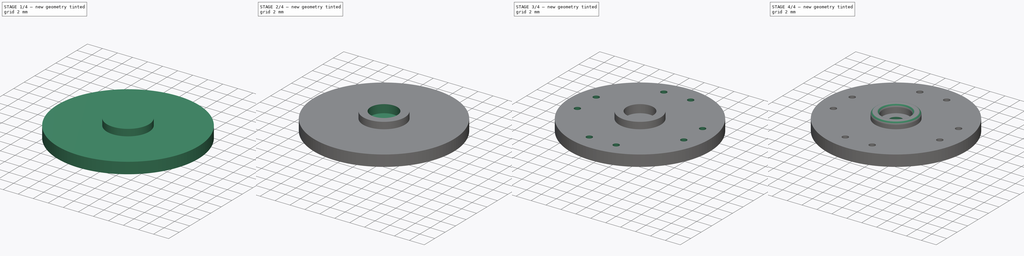
[diagram: build sequence overview — one tinted view per stage of 4, left to right]
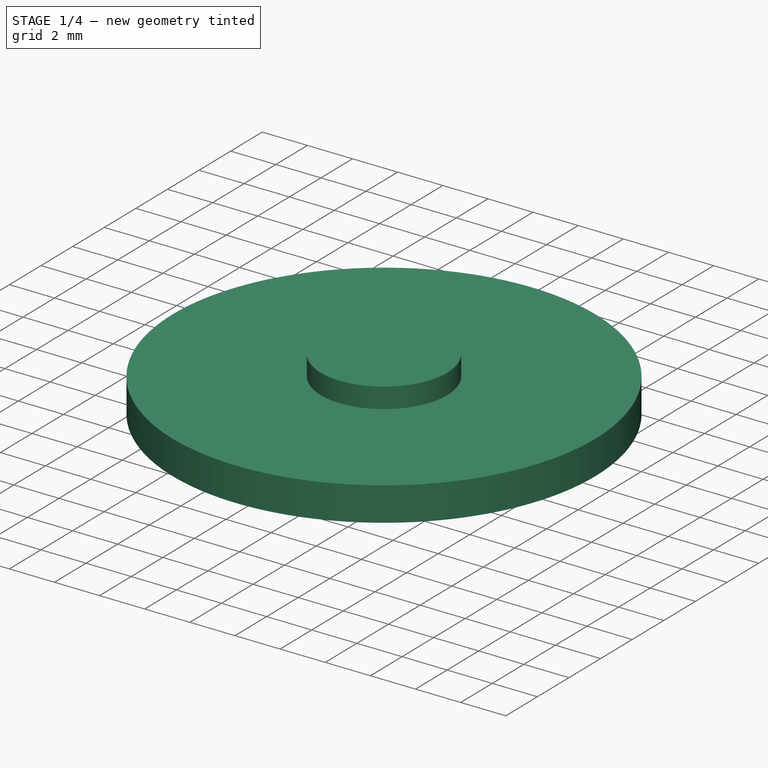
[diagram: stage 1 of 4 — iso view after this stage's code; geometry added in this stage tinted green]
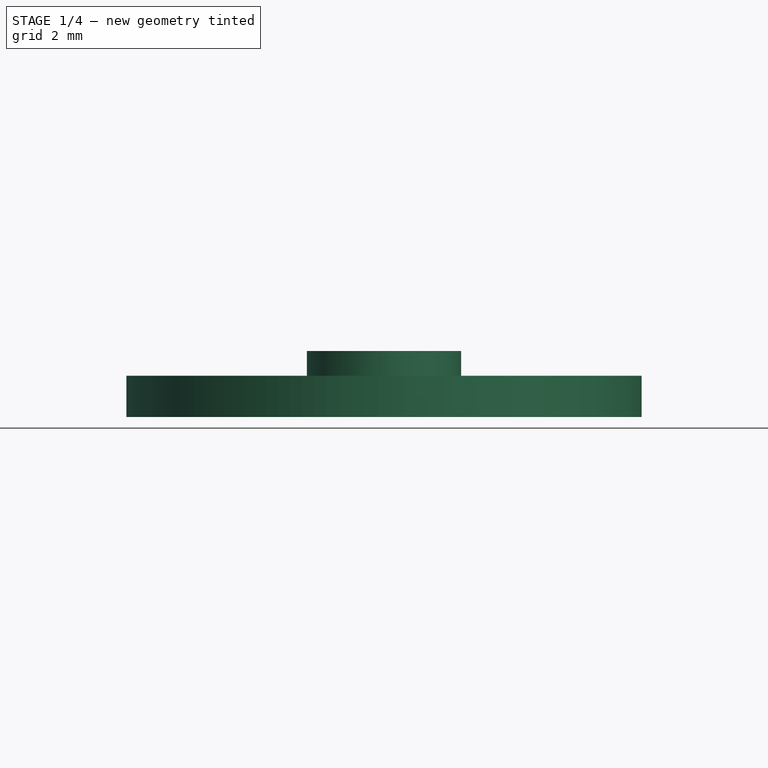
[diagram: stage 1 of 4 — front view after this stage's code; geometry added in this stage tinted green]
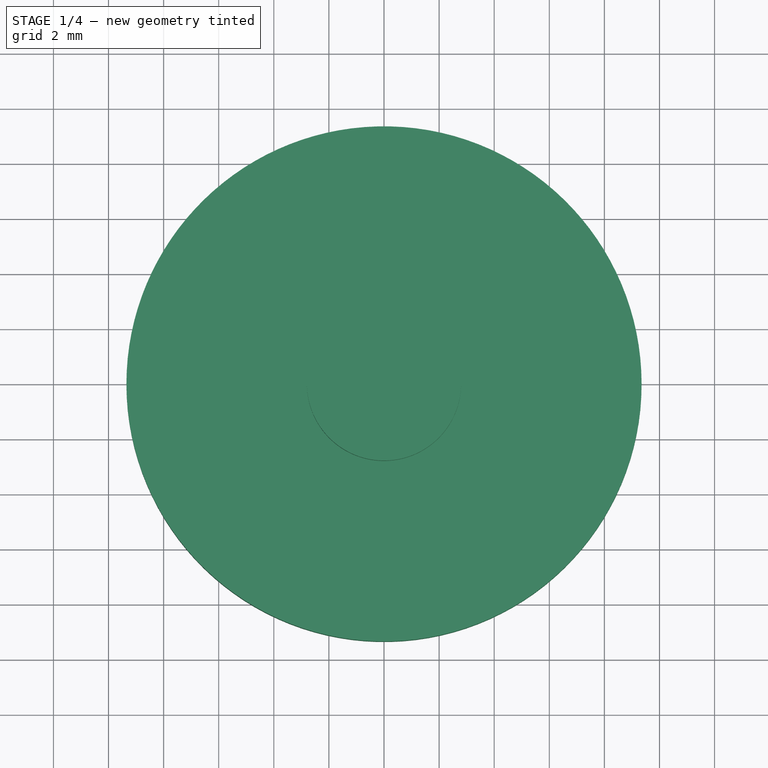
[diagram: stage 1 of 4 — top view after this stage's code; geometry added in this stage tinted green]
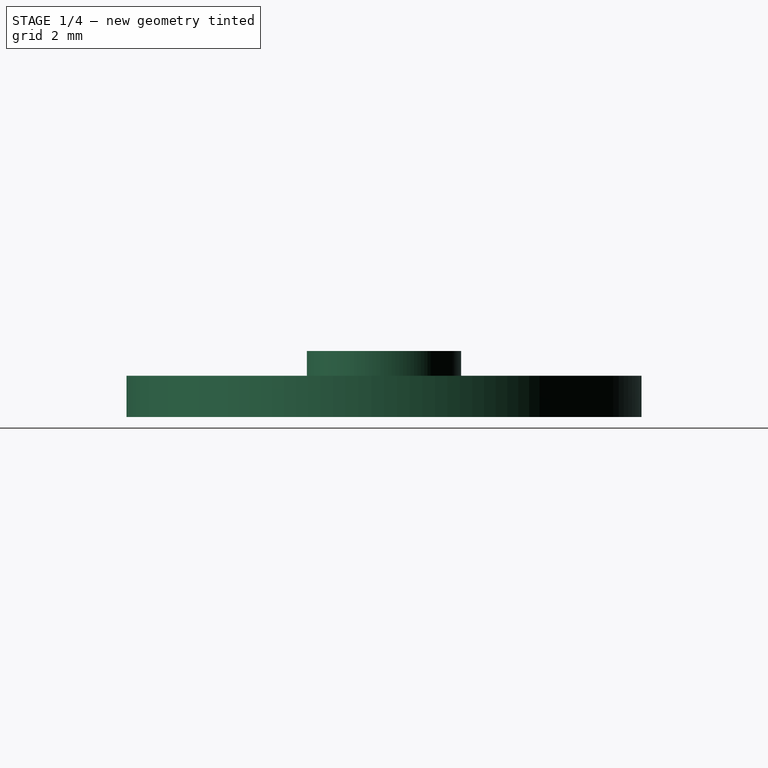
[diagram: stage 1 of 4 — right view after this stage's code; geometry added in this stage tinted green]
FCSTD DOCUMENT  (FreeCAD 0.14R3702 (Git))
Label: servo-rounded-horn
License: CC-BY 3.0
LicenseURL: http://creativecommons.org/licenses/by/3.0/
objects: Sketcher::SketchObject×7, PartDesign::Pocket×4, PartDesign::Pad×3, PartDesign::PolarPattern×1, Part::Fillet×1
note: 23 computed .brp shape members not serialized (recipe doc carries the construction recipe); baked Part::Feature solids carry a one-line shape summary decoded from their .brp

FEATURE [Sketcher::SketchObject] Sketch  label="main-body-sketch"
  sketch-geometry (1):
    g0: Circle CenterX=0 CenterY=0 CenterZ=0 NormalX=0 NormalY=0 NormalZ=1 Radius=9.35
  constraints (2):
    c: Coincident(g0,g-1)
    c: Radius(g0) = 9.35
FEATURE [PartDesign::Pad] Pad  label="main-body"
  Length = 1.5
  Length2 = 100
  Sketch = -> Sketch
  Type = 0
FEATURE [Sketcher::SketchObject] Sketch001  label="top-pad-1-sketch"
  Placement = pos=(0,0,1.5) rot=(0,0,1;0rad)
  Support = -> Pad [Face3]
  sketch-geometry (1):
    g0: Circle CenterX=0 CenterY=0 CenterZ=0 NormalX=0 NormalY=0 NormalZ=1 Radius=2.8
  constraints (2):
    c: Coincident(g0,g-1)
    c: Radius(g0) = 2.8
FEATURE [PartDesign::Pad] Pad001  label="top-pad-1"
  Length = 0.9
  Length2 = 100
  Sketch = -> Sketch001
  Type = 0
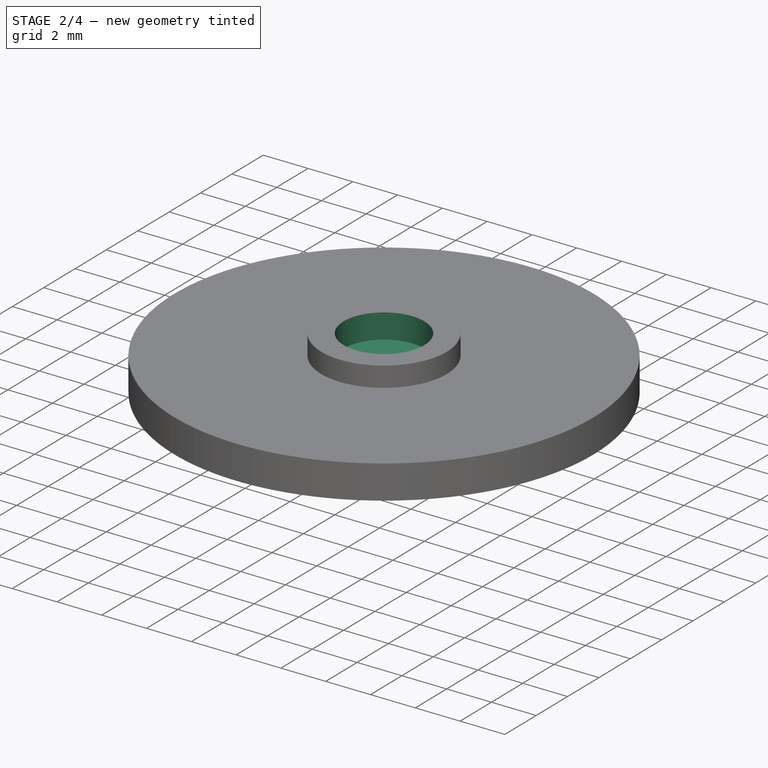
[diagram: stage 2 of 4 — iso view after this stage's code; geometry added in this stage tinted green]
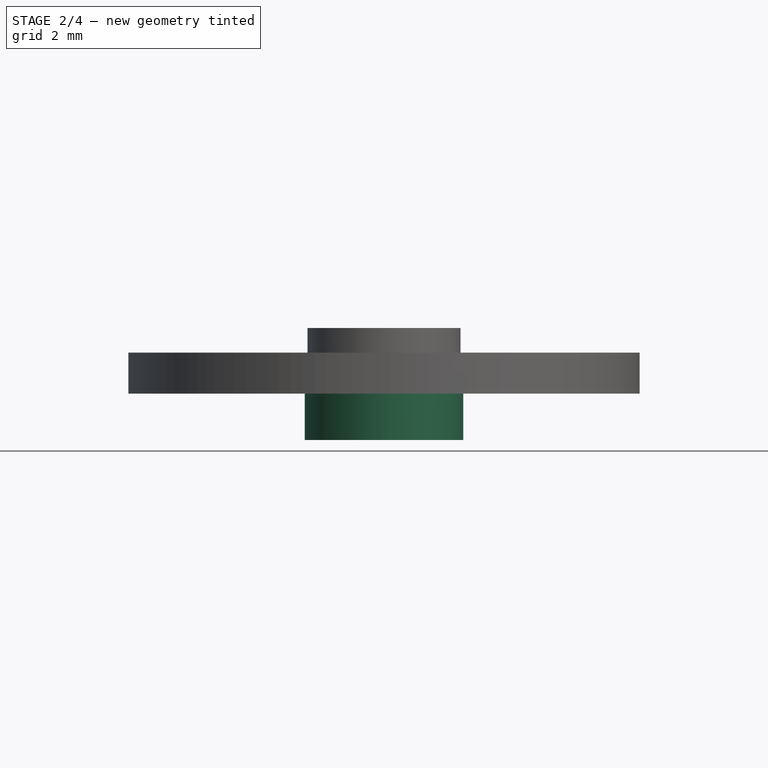
[diagram: stage 2 of 4 — front view after this stage's code; geometry added in this stage tinted green]
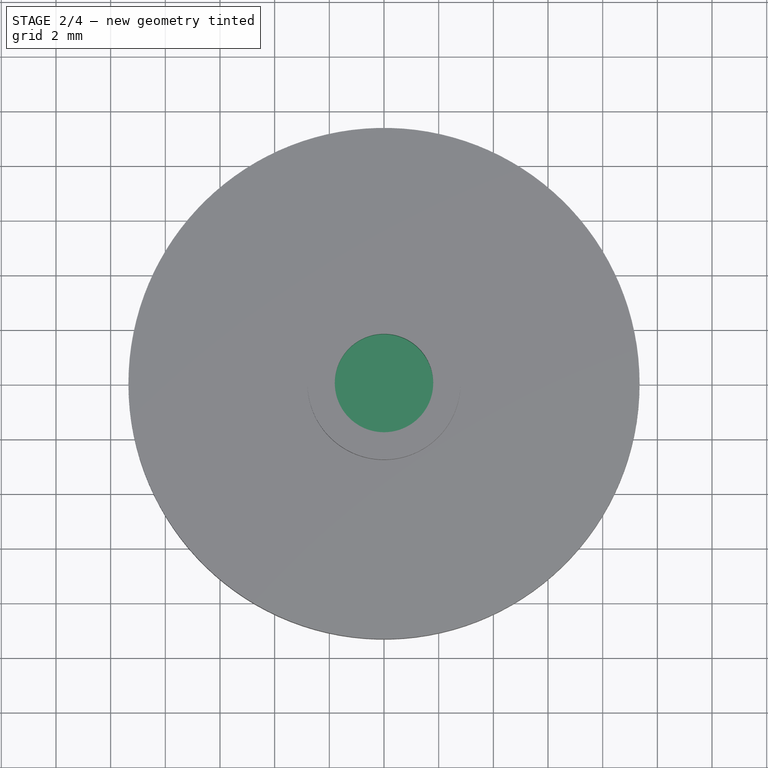
[diagram: stage 2 of 4 — top view after this stage's code; geometry added in this stage tinted green]
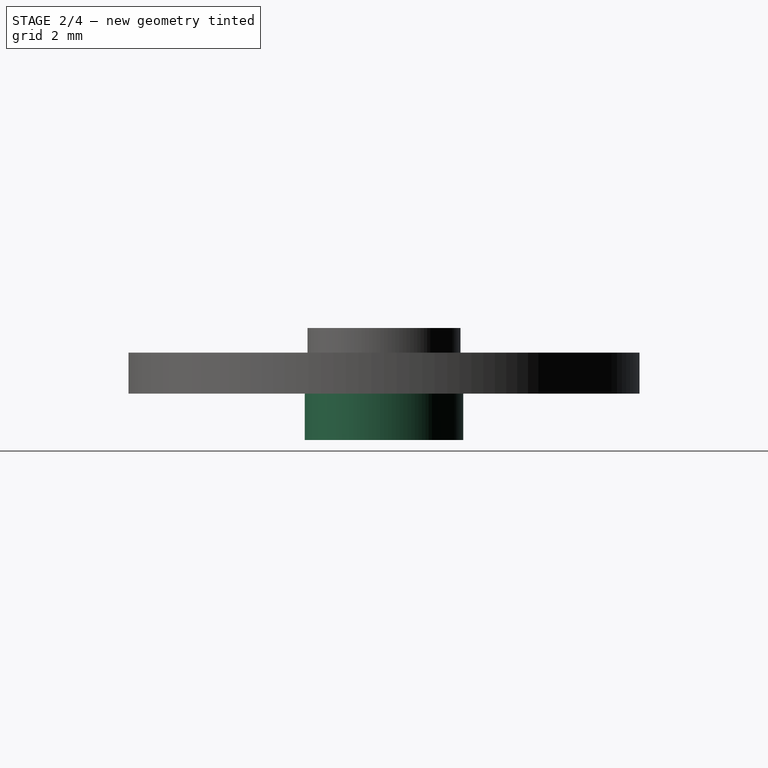
[diagram: stage 2 of 4 — right view after this stage's code; geometry added in this stage tinted green]
FEATURE [Sketcher::SketchObject] Sketch002  label="top-cutout-2-sketch"
  Placement = pos=(0,0,2.4) rot=(0,0,1;0rad)
  Support = -> Pad001 [Face5]
  sketch-geometry (1):
    g0: Circle CenterX=0 CenterY=0 CenterZ=0 NormalX=0 NormalY=0 NormalZ=1 Radius=1.8
  constraints (2):
    c: Coincident(g0,g-1)
    c: Radius(g0) = 1.8
FEATURE [PartDesign::Pocket] Pocket  label="top-cutout-2"
  Length = 1.1
  Sketch = -> Sketch002
  Type = 0
FEATURE [Sketcher::SketchObject] Sketch003  label="bottom-pad-3-sketch"
  Placement = pos=(0,0,0) rot=(1,0,0;3.14159rad)
  Support = -> Pocket [Face2]
  sketch-geometry (1):
    g0: Circle CenterX=0 CenterY=0 CenterZ=0 NormalX=0 NormalY=0 NormalZ=1 Radius=2.9
  constraints (2):
    c: Coincident(g0,g-1)
    c: Radius(g0) = 2.9
FEATURE [PartDesign::Pad] Pad002  label="bottom-pad-3"
  Length = 1.7
  Length2 = 100
  Sketch = -> Sketch003
  Type = 0
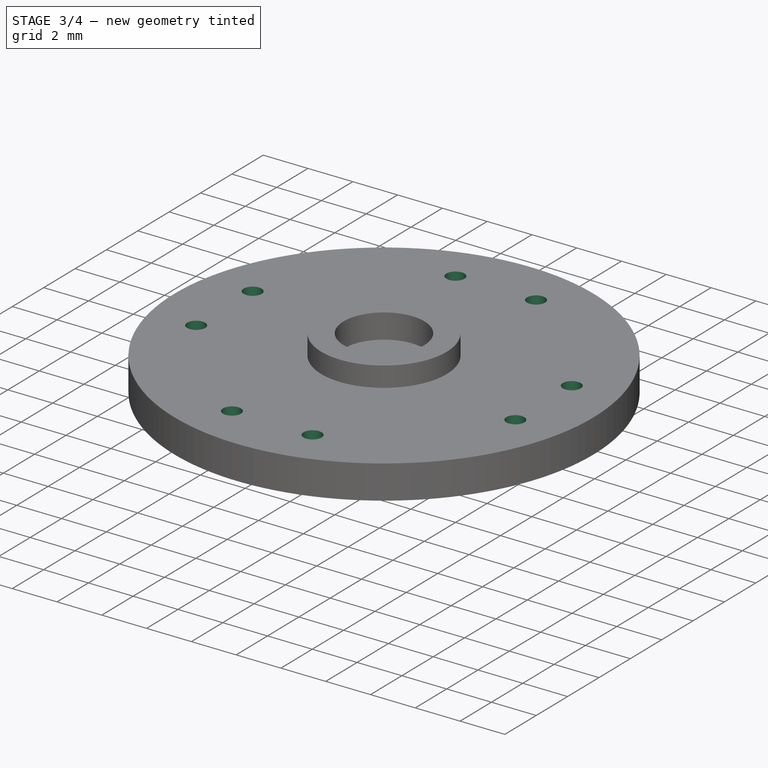
[diagram: stage 3 of 4 — iso view after this stage's code; geometry added in this stage tinted green]
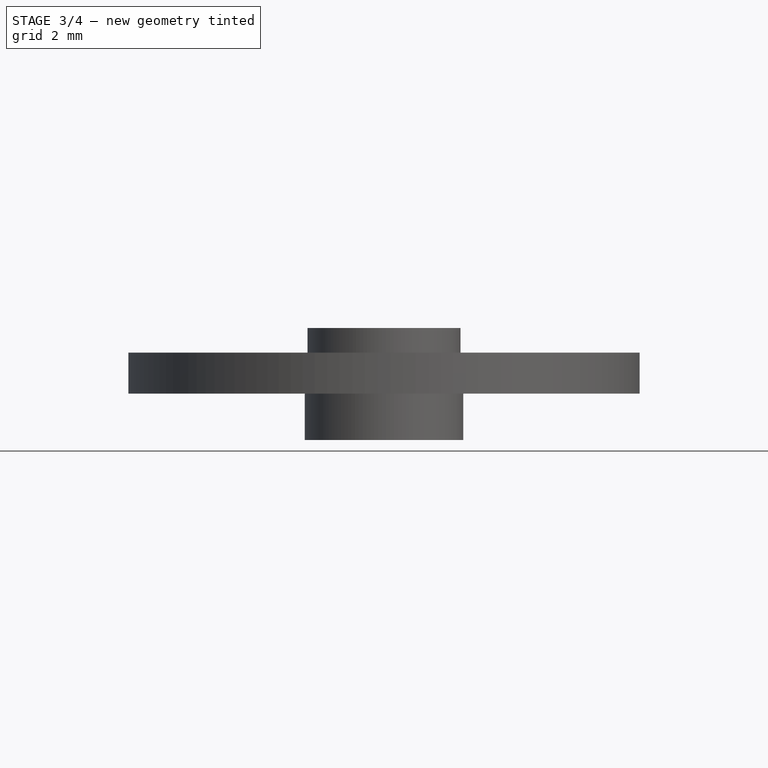
[diagram: stage 3 of 4 — front view after this stage's code; geometry added in this stage tinted green]
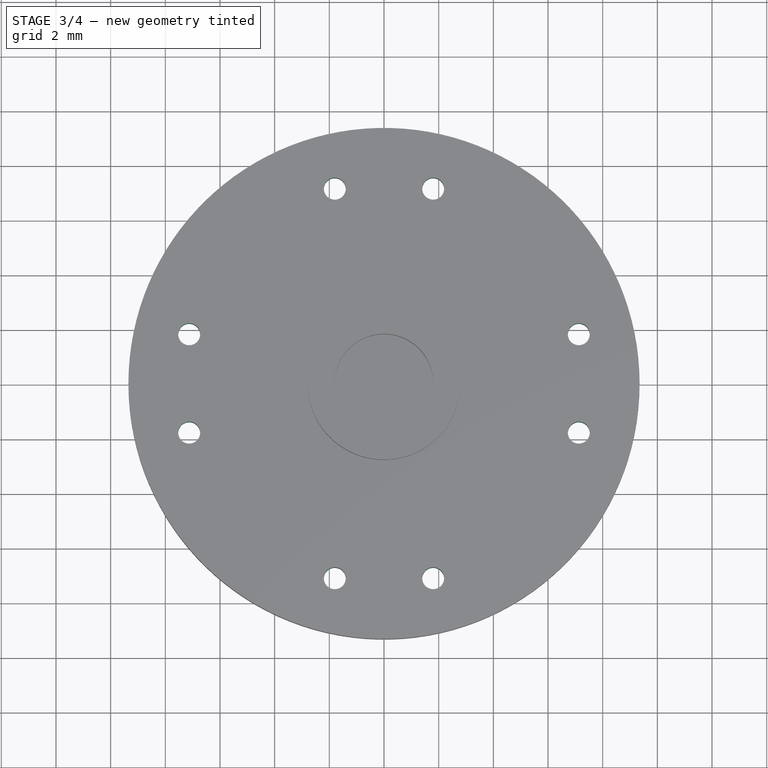
[diagram: stage 3 of 4 — top view after this stage's code; geometry added in this stage tinted green]
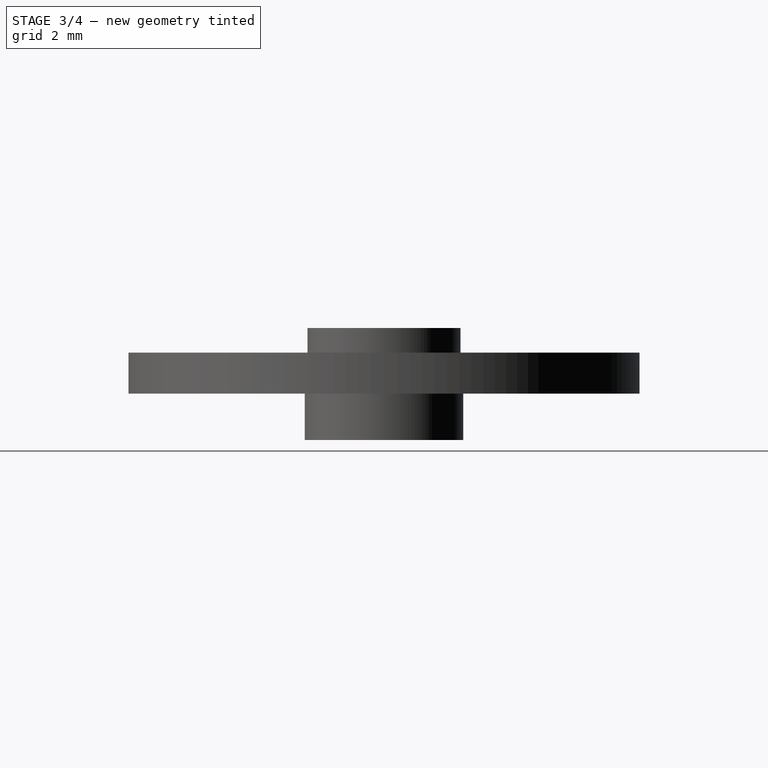
[diagram: stage 3 of 4 — right view after this stage's code; geometry added in this stage tinted green]
FEATURE [Sketcher::SketchObject] Sketch004  label="bottom-pad-4-sketch"
  Placement = pos=(0,0,-1.7) rot=(1,0,0;3.14159rad)
  Support = -> Pad002 [Face6]
  sketch-geometry (1):
    g0: Circle CenterX=0 CenterY=0 CenterZ=0 NormalX=0 NormalY=0 NormalZ=1 Radius=1.7
  constraints (2):
    c: Coincident(g0,g-1)
    c: Radius(g0) = 1.7
FEATURE [PartDesign::Pocket] Pocket001  label="bottom-pad-4"
  Length = 2.6
  Sketch = -> Sketch004
  Type = 0
FEATURE [Sketcher::SketchObject] Sketch005  label="top-drills-master-sketch"
  Placement = pos=(0,0,1.5) rot=(0,0,1;0rad)
  Support = -> Pocket001 [Face3]
  sketch-geometry (4):
    g0: LineSegment [constr] StartX=-1.8 StartY=7.12618 StartZ=0 EndX=1.8 EndY=7.12618 EndZ=0
    g1: Circle CenterX=-1.8 CenterY=7.12618 CenterZ=0 NormalX=0 NormalY=0 NormalZ=1 Radius=0.4
    g2: Circle CenterX=1.8 CenterY=7.12618 CenterZ=0 NormalX=0 NormalY=0 NormalZ=1 Radius=0.4
    g3: LineSegment [constr] StartX=-1.8 StartY=7.12618 StartZ=0 EndX=0 EndY=0 EndZ=0
  constraints (10):
    c: Horizontal(g0)
    c: Symmetric(g0,g0,g-2)
    c: Radius(g1) = 0.4
    c: Coincident(g1,g0)
    c: Coincident(g2,g0)
    c: Equal(g2,g1)
    c: DistanceX(g0) = 3.6
    c: Coincident(g3,g-1)
    c: Coincident(g3,g0)
    c: Distance(g3) = 7.35
FEATURE [PartDesign::Pocket] Pocket002  label="top-drills-master"
  Length = 5
  Sketch = -> Sketch005
  Type = 1
FEATURE [PartDesign::PolarPattern] PolarPattern
  Angle = 360
  Axis = -> Sketch005 [N_Axis]
  Occurrences = 4
  Originals = -> [Pocket002]
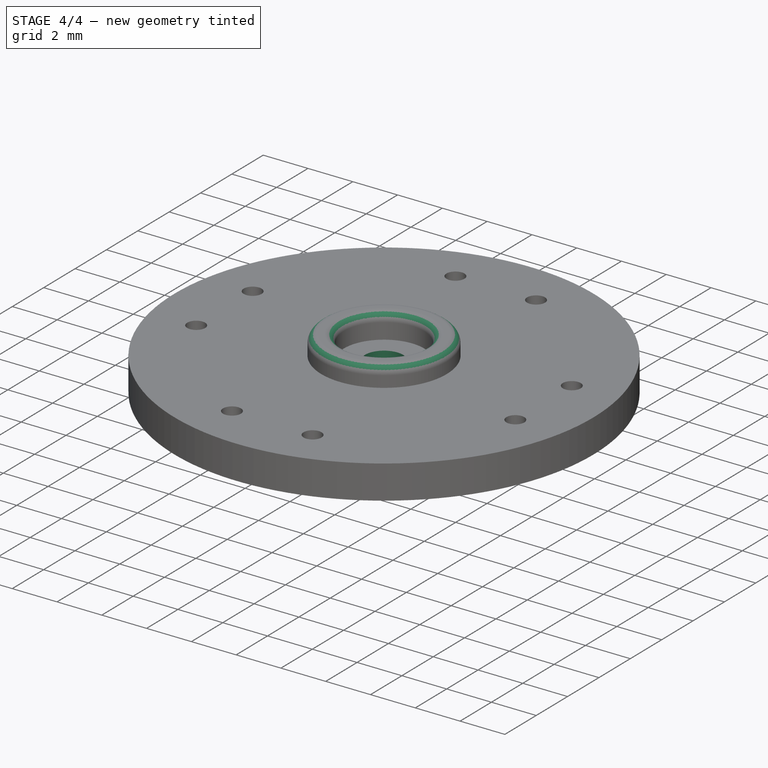
[diagram: stage 4 of 4 — iso view after this stage's code; geometry added in this stage tinted green]
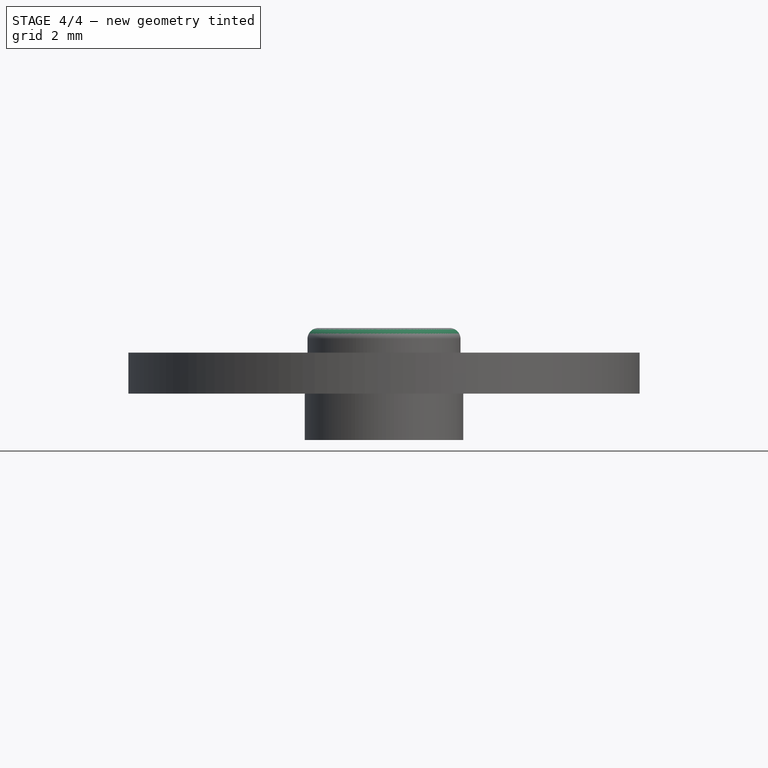
[diagram: stage 4 of 4 — front view after this stage's code; geometry added in this stage tinted green]
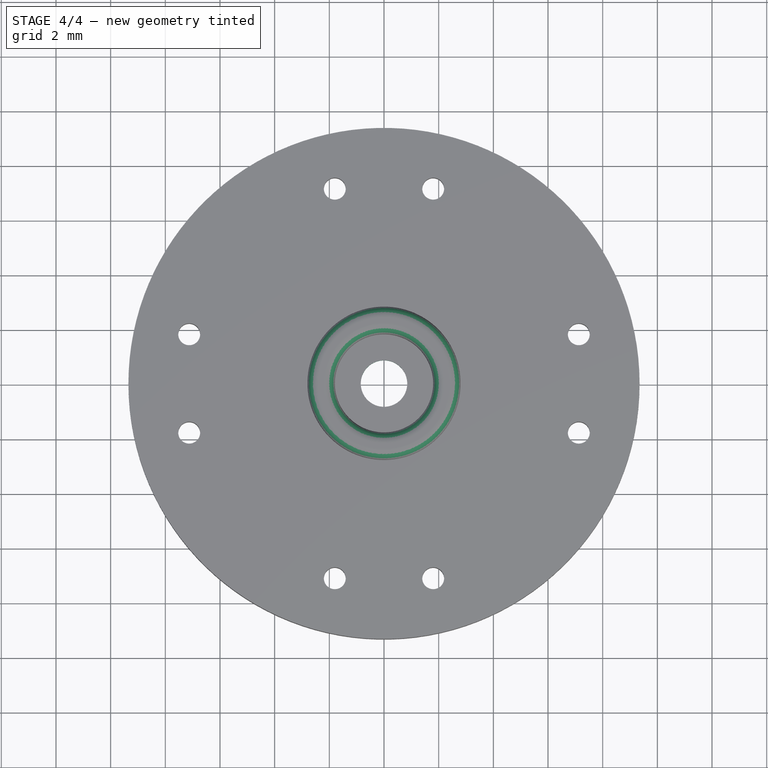
[diagram: stage 4 of 4 — top view after this stage's code; geometry added in this stage tinted green]
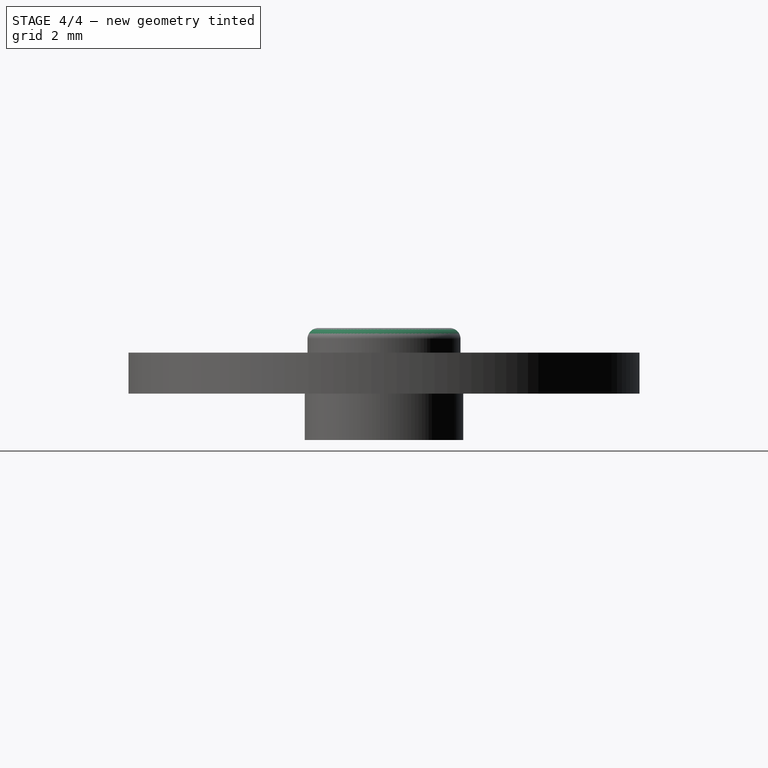
[diagram: stage 4 of 4 — right view after this stage's code; geometry added in this stage tinted green]
FEATURE [Part::Fillet] Fillet
  Base = -> PolarPattern
  Edges = 2 edges r=0.4: [Edge33,Edge35]
FEATURE [Sketcher::SketchObject] Sketch006  label="shaft-drill-sketch"
  Placement = pos=(0,0,1.3) rot=(0,0,1;0rad)
  Support = -> Fillet [Face18]
  sketch-geometry (1):
    g0: Circle CenterX=0 CenterY=0 CenterZ=0 NormalX=0 NormalY=0 NormalZ=1 Radius=0.85
  constraints (2):
    c: Coincident(g0,g-1)
    c: Radius(g0) = 0.85
FEATURE [PartDesign::Pocket] Pocket003  label="shaft-drill"
  Length = 5
  Sketch = -> Sketch006
  Type = 1
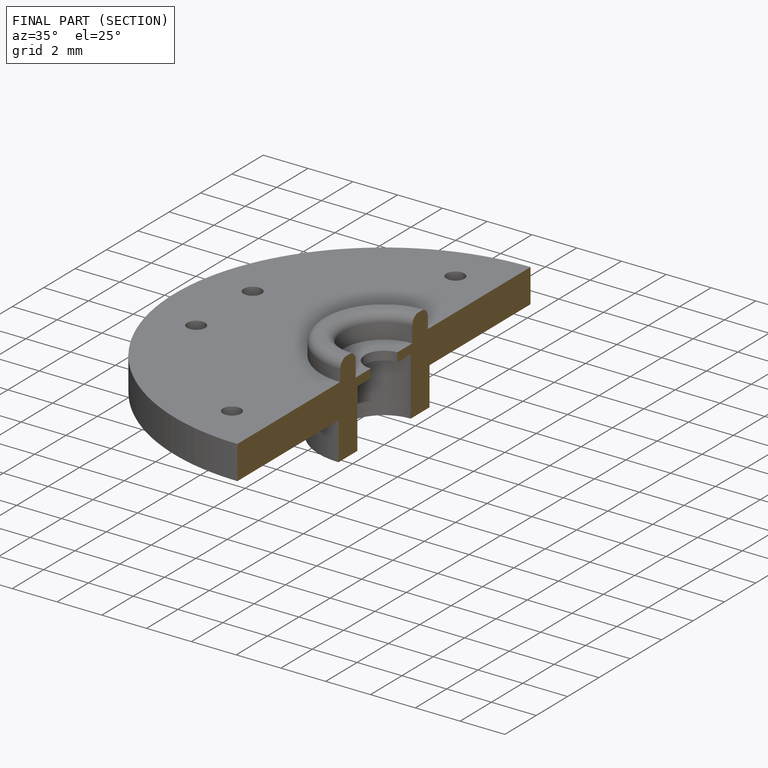
[diagram: finished part — half-section view (interior)]
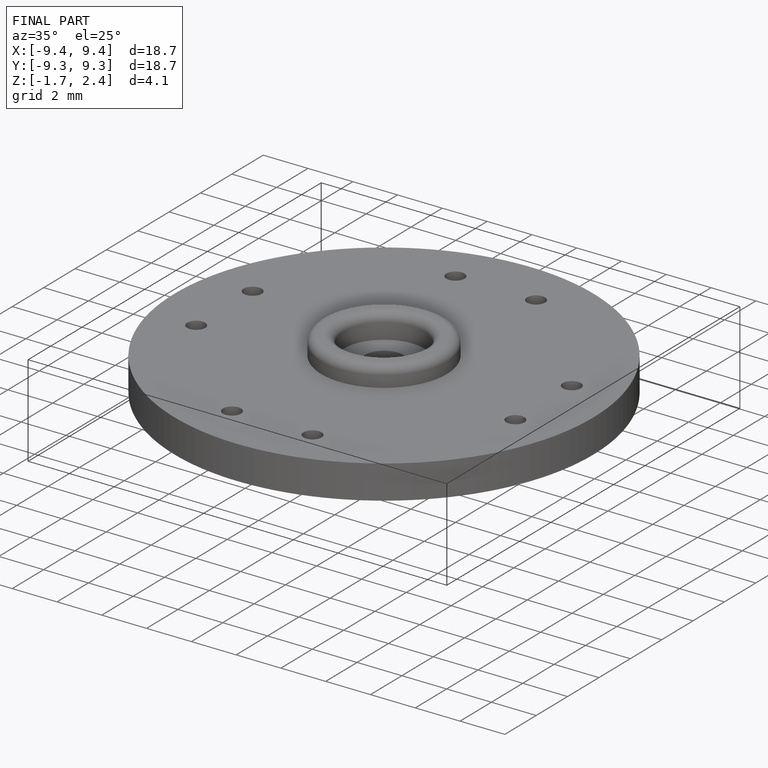
[diagram: finished part — iso view with bounding-box wireframe]
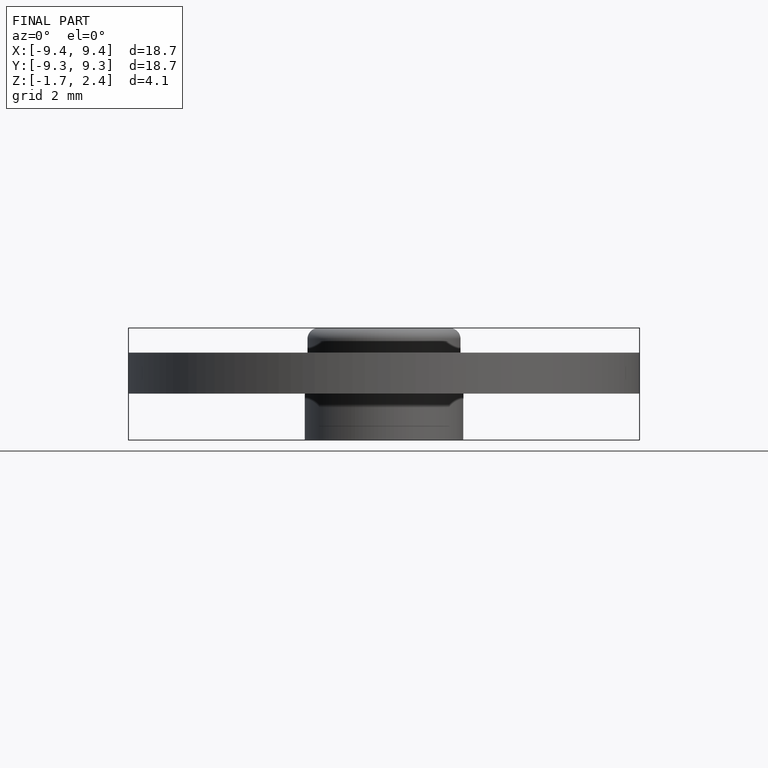
[diagram: finished part — front view with bounding-box wireframe]
